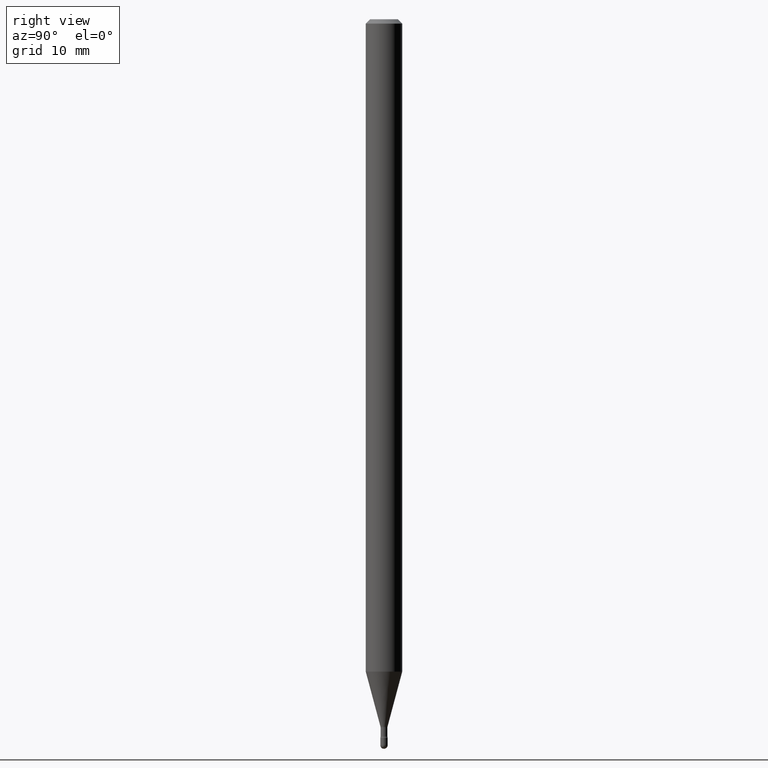
[diagram: clean part render]
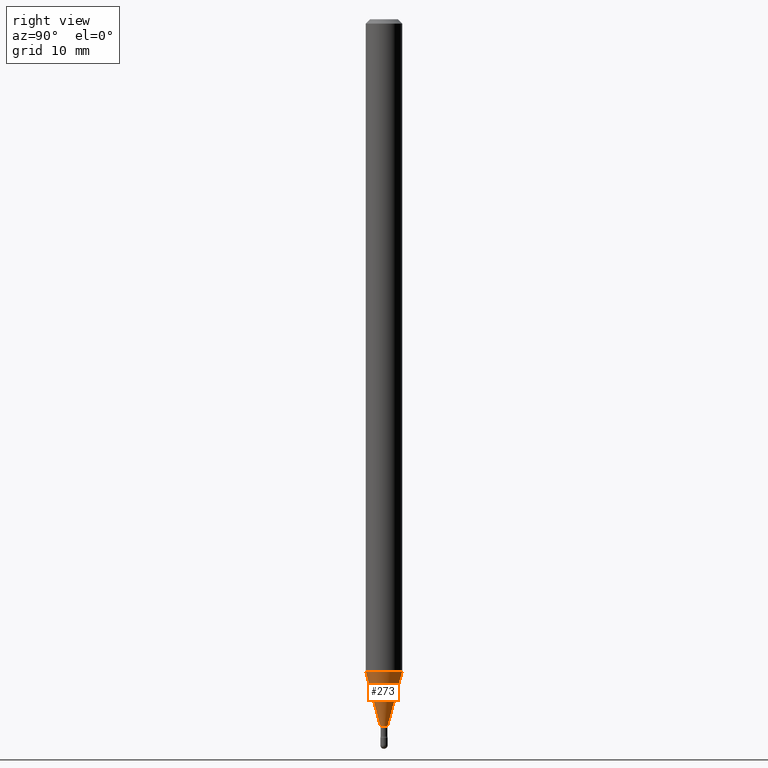
[diagram: same view with one face highlighted and labeled with its STEP entity id]
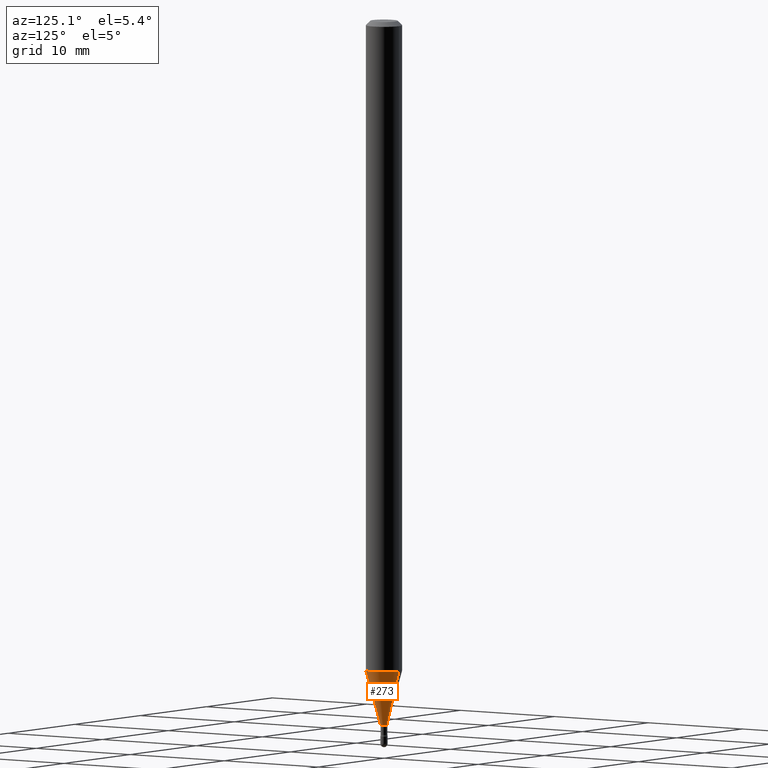
[diagram: same view with one face highlighted and labeled with its STEP entity id]
A machine part, right view. The second image highlights one B-rep face of the part: STEP entity #273.
A second angle (auxiliary view) of the same face is appended — the face is thin or edge-on in the first view.
In plain terms, the highlighted conical surface has half-angle 15 deg.
Its self-contained STEP definition (entity closure, byte-faithful):
#1 = VECTOR ( 'NONE', #117, 39.37007874015748143 ) ;
#14 = EDGE_CURVE ( 'NONE', #219, #223, #458, .T. ) ;
#26 = LINE ( 'NONE', #196, #1 ) ;
#28 = VERTEX_POINT ( 'NONE', #294 ) ;
#50 = EDGE_LOOP ( 'NONE', ( #470, #346, #283, #215 ) ) ;
#76 = DIRECTION ( 'NONE',  ( -6.982962677686265133E-15, -1.000000000000000000, 0.000000000000000000 ) ) ;
#99 = CARTESIAN_POINT ( 'NONE',  ( 2.656048273965440826E-16, 0.01226111260565552162, -2.423092501787273534 ) ) ;
#117 = DIRECTION ( 'NONE',  ( -1.807323732225328167E-15, -0.2588190451025179084, 0.9659258262890690894 ) ) ;
#118 = CIRCLE ( 'NONE', #148, 0.01226111260566398187 ) ;
#140 = VERTEX_POINT ( 'NONE', #99 ) ;
#148 = AXIS2_PLACEMENT_3D ( 'NONE', #228, #450, #400 ) ;
#168 = EDGE_CURVE ( 'NONE', #28, #140, #118, .T. ) ;
#196 = CARTESIAN_POINT ( 'NONE',  ( -8.561889171220093965E-17, -0.01226111260567244211, -2.423092501787273534 ) ) ;
#215 = ORIENTED_EDGE ( 'NONE', *, *, #230, .F. ) ;
#218 = CARTESIAN_POINT ( 'NONE',  ( 5.467081872275488067E-29, -7.805556371676380338E-15, -2.235598421515879952 ) ) ;
#219 = VERTEX_POINT ( 'NONE', #238 ) ;
#223 = VERTEX_POINT ( 'NONE', #510 ) ;
#227 = DIRECTION ( 'NONE',  ( 1.839019923739597949E-15, 0.2588190451025246253, 0.9659258262890670910 ) ) ;
#228 = CARTESIAN_POINT ( 'NONE',  ( 5.925592433718652298E-29, -8.460188974217597604E-15, -2.423092501787273534 ) ) ;
#230 = EDGE_CURVE ( 'NONE', #28, #219, #26, .T. ) ;
#238 = CARTESIAN_POINT ( 'NONE',  ( -4.364351673553370901E-16, -0.06250000000000781319, -2.235598421515879952 ) ) ;
#261 = AXIS2_PLACEMENT_3D ( 'NONE', #464, #276, #76 ) ;
#273 = ADVANCED_FACE ( 'NONE', ( #285 ), #323, .T. ) ;
#276 = DIRECTION ( 'NONE',  ( -2.445466869031180399E-29, 3.491484112957866837E-15, 1.000000000000000000 ) ) ;
#283 = ORIENTED_EDGE ( 'NONE', *, *, #14, .F. ) ;
#285 = FACE_OUTER_BOUND ( 'NONE', #50, .T. ) ;
#294 = CARTESIAN_POINT ( 'NONE',  ( -8.561889171220093965E-17, -0.01226111260567244211, -2.423092501787273534 ) ) ;
#316 = CARTESIAN_POINT ( 'NONE',  ( 8.712044494297058757E-17, 0.01226111260565552162, -2.423092501787273534 ) ) ;
#323 = CONICAL_SURFACE ( 'NONE', #261, 0.01226111260566398187, 0.2617993877991499629 ) ;
#346 = ORIENTED_EDGE ( 'NONE', *, *, #498, .T. ) ;
#385 = AXIS2_PLACEMENT_3D ( 'NONE', #218, #391, #556 ) ;
#391 = DIRECTION ( 'NONE',  ( -2.445466869031180399E-29, 3.491484112957866837E-15, 1.000000000000000000 ) ) ;
#396 = LINE ( 'NONE', #316, #469 ) ;
#400 = DIRECTION ( 'NONE',  ( -6.982962677686265133E-15, -1.000000000000000000, 0.000000000000000000 ) ) ;
#450 = DIRECTION ( 'NONE',  ( -2.445466869031180399E-29, 3.491484112957866837E-15, 1.000000000000000000 ) ) ;
#458 = CIRCLE ( 'NONE', #385, 0.06250000000000000000 ) ;
#464 = CARTESIAN_POINT ( 'NONE',  ( 5.925592433718652298E-29, -8.460188974217597604E-15, -2.423092501787273534 ) ) ;
#469 = VECTOR ( 'NONE', #227, 39.37007874015748854 ) ;
#470 = ORIENTED_EDGE ( 'NONE', *, *, #168, .T. ) ;
#498 = EDGE_CURVE ( 'NONE', #140, #223, #396, .T. ) ;
#510 = CARTESIAN_POINT ( 'NONE',  ( 4.440892098501171462E-16, 0.06249999999999219374, -2.235598421515880396 ) ) ;
#556 = DIRECTION ( 'NONE',  ( -6.982962677686265922E-15, -1.000000000000000000, 4.370956789862821150E-15 ) ) ;